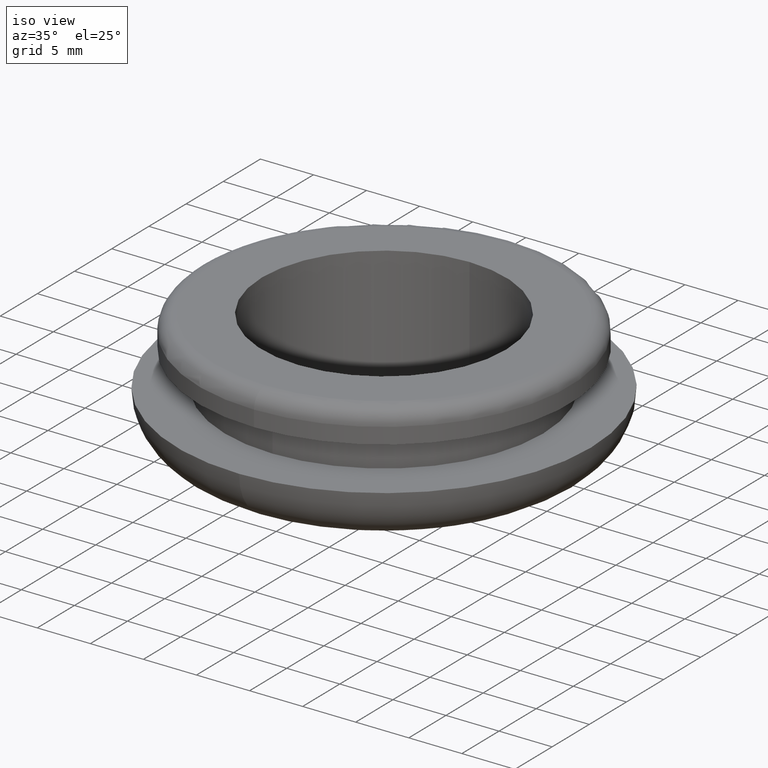
[diagram: clean part render]
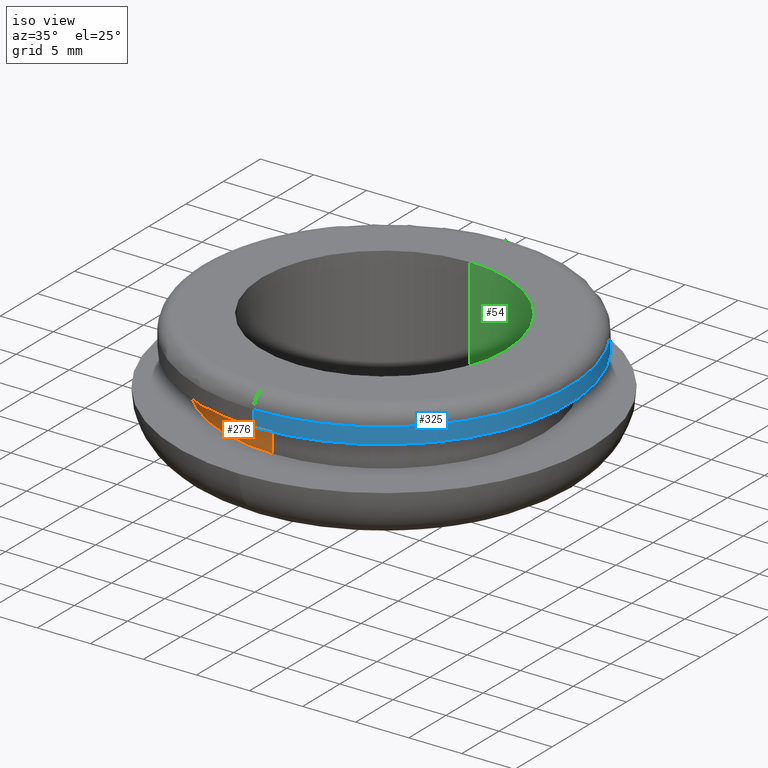
[diagram: same view with three faces highlighted in distinct colors, each labeled with its STEP entity id]
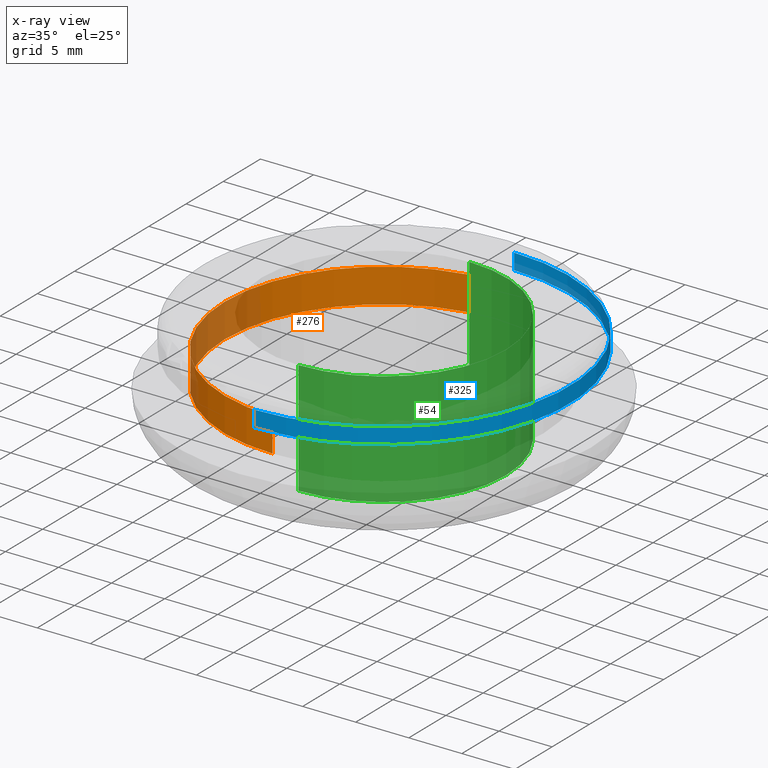
[diagram: x-ray of the same camera — body ghosted, the three highlighted faces saturated]
A machine part, iso view with three faces highlighted in distinct colors.
The next image is the same camera in x-ray (body ghosted, the three faces saturated) — at least one of them is partly hidden behind the body in this view.
Their STEP definitions:

[orange] entity #276 — the highlighted cylindrical surface (partial cylindrical patch) has radius 15 mm, axis along (0, -0, 1).
#45 = AXIS2_PLACEMENT_3D ( 'NONE', #164, #150, #148 ) ;
#56 = VERTEX_POINT ( 'NONE', #57 ) ;
#57 = CARTESIAN_POINT ( 'NONE',  ( 0.0000000000000000000, 2.999999999999999100, -15.00000000000000000 ) ) ;
#68 = VERTEX_POINT ( 'NONE', #461 ) ;
#130 = ORIENTED_EDGE ( 'NONE', *, *, #523, .T. ) ;
#148 = DIRECTION ( 'NONE',  ( 0.0000000000000000000, 0.0000000000000000000, -1.000000000000000000 ) ) ;
#150 = DIRECTION ( 'NONE',  ( 0.0000000000000000000, -1.000000000000000000, 0.0000000000000000000 ) ) ;
#151 = DIRECTION ( 'NONE',  ( 0.0000000000000000000, 0.0000000000000000000, -1.000000000000000000 ) ) ;
#159 = CARTESIAN_POINT ( 'NONE',  ( 1.836970198721029600E-015, 12.69999999999999900, 15.00000000000000000 ) ) ;
#164 = CARTESIAN_POINT ( 'NONE',  ( 0.0000000000000000000, 2.999999999999999100, 0.0000000000000000000 ) ) ;
#172 = VERTEX_POINT ( 'NONE', #354 ) ;
#176 = VECTOR ( 'NONE', #223, 1000.000000000000000 ) ;
#196 = LINE ( 'NONE', #159, #585 ) ;
#221 = EDGE_CURVE ( 'NONE', #172, #56, #312, .T. ) ;
#223 = DIRECTION ( 'NONE',  ( 0.0000000000000000000, -1.000000000000000000, 0.0000000000000000000 ) ) ;
#233 = CARTESIAN_POINT ( 'NONE',  ( 0.0000000000000000000, 12.69999999999999900, 0.0000000000000000000 ) ) ;
#276 = ADVANCED_FACE ( 'NONE', ( #416 ), #514, .T. ) ;
#310 = DIRECTION ( 'NONE',  ( 0.0000000000000000000, -1.000000000000000000, 0.0000000000000000000 ) ) ;
#312 = LINE ( 'NONE', #352, #176 ) ;
#333 = EDGE_CURVE ( 'NONE', #68, #56, #636, .T. ) ;
#345 = CARTESIAN_POINT ( 'NONE',  ( 1.836970198721029600E-015, 6.200000000000000200, 15.00000000000000000 ) ) ;
#352 = CARTESIAN_POINT ( 'NONE',  ( 0.0000000000000000000, 12.69999999999999900, -15.00000000000000000 ) ) ;
#354 = CARTESIAN_POINT ( 'NONE',  ( 0.0000000000000000000, 6.200000000000000200, -15.00000000000000000 ) ) ;
#363 = ORIENTED_EDGE ( 'NONE', *, *, #464, .F. ) ;
#396 = ORIENTED_EDGE ( 'NONE', *, *, #221, .T. ) ;
#397 = AXIS2_PLACEMENT_3D ( 'NONE', #644, #614, #151 ) ;
#416 = FACE_OUTER_BOUND ( 'NONE', #532, .T. ) ;
#436 = DIRECTION ( 'NONE',  ( 0.0000000000000000000, -1.000000000000000000, 0.0000000000000000000 ) ) ;
#447 = CIRCLE ( 'NONE', #397, 15.00000000000000000 ) ;
#450 = ORIENTED_EDGE ( 'NONE', *, *, #333, .F. ) ;
#461 = CARTESIAN_POINT ( 'NONE',  ( 1.836970198721029600E-015, 2.999999999999999100, 15.00000000000000000 ) ) ;
#464 = EDGE_CURVE ( 'NONE', #536, #68, #196, .T. ) ;
#514 = CYLINDRICAL_SURFACE ( 'NONE', #591, 15.00000000000000000 ) ;
#523 = EDGE_CURVE ( 'NONE', #536, #172, #447, .T. ) ;
#532 = EDGE_LOOP ( 'NONE', ( #363, #130, #396, #450 ) ) ;
#536 = VERTEX_POINT ( 'NONE', #345 ) ;
#565 = DIRECTION ( 'NONE',  ( 0.0000000000000000000, 0.0000000000000000000, -1.000000000000000000 ) ) ;
#585 = VECTOR ( 'NONE', #310, 1000.000000000000000 ) ;
#591 = AXIS2_PLACEMENT_3D ( 'NONE', #233, #436, #565 ) ;
#614 = DIRECTION ( 'NONE',  ( 0.0000000000000000000, -1.000000000000000000, 0.0000000000000000000 ) ) ;
#636 = CIRCLE ( 'NONE', #45, 15.00000000000000000 ) ;
#644 = CARTESIAN_POINT ( 'NONE',  ( 0.0000000000000000000, 6.200000000000000200, 0.0000000000000000000 ) ) ;

[blue] entity #325 — the highlighted cylindrical surface (partial cylindrical patch) has radius 17.5 mm, axis along (0, -0, 1).
#15 = VECTOR ( 'NONE', #414, 1000.000000000000000 ) ;
#36 = ORIENTED_EDGE ( 'NONE', *, *, #39, .T. ) ;
#39 = EDGE_CURVE ( 'NONE', #359, #298, #55, .T. ) ;
#44 = EDGE_CURVE ( 'NONE', #128, #199, #449, .T. ) ;
#55 = CIRCLE ( 'NONE', #144, 17.50000000000000000 ) ;
#70 = CARTESIAN_POINT ( 'NONE',  ( 0.0000000000000000000, 2.999999999999999100, -17.50000000000000000 ) ) ;
#93 = CARTESIAN_POINT ( 'NONE',  ( 0.0000000000000000000, 1.500000000000008200, 0.0000000000000000000 ) ) ;
#114 = CARTESIAN_POINT ( 'NONE',  ( 0.0000000000000000000, 12.69999999999999900, 0.0000000000000000000 ) ) ;
#115 = AXIS2_PLACEMENT_3D ( 'NONE', #114, #374, #200 ) ;
#128 = VERTEX_POINT ( 'NONE', #469 ) ;
#144 = AXIS2_PLACEMENT_3D ( 'NONE', #423, #575, #516 ) ;
#178 = AXIS2_PLACEMENT_3D ( 'NONE', #93, #466, #521 ) ;
#182 = EDGE_CURVE ( 'NONE', #298, #199, #378, .T. ) ;
#199 = VERTEX_POINT ( 'NONE', #609 ) ;
#200 = DIRECTION ( 'NONE',  ( 0.0000000000000000000, 0.0000000000000000000, -1.000000000000000000 ) ) ;
#239 = VECTOR ( 'NONE', #323, 1000.000000000000000 ) ;
#261 = EDGE_CURVE ( 'NONE', #359, #128, #297, .T. ) ;
#285 = ORIENTED_EDGE ( 'NONE', *, *, #261, .F. ) ;
#297 = LINE ( 'NONE', #376, #15 ) ;
#298 = VERTEX_POINT ( 'NONE', #340 ) ;
#323 = DIRECTION ( 'NONE',  ( 0.0000000000000000000, -1.000000000000000000, 0.0000000000000000000 ) ) ;
#325 = ADVANCED_FACE ( 'NONE', ( #405 ), #385, .T. ) ;
#340 = CARTESIAN_POINT ( 'NONE',  ( 2.143131898507868200E-015, 2.999999999999999100, 17.50000000000000000 ) ) ;
#359 = VERTEX_POINT ( 'NONE', #70 ) ;
#374 = DIRECTION ( 'NONE',  ( 0.0000000000000000000, -1.000000000000000000, 0.0000000000000000000 ) ) ;
#375 = CARTESIAN_POINT ( 'NONE',  ( 2.143131898507868200E-015, 12.69999999999999900, 17.50000000000000000 ) ) ;
#376 = CARTESIAN_POINT ( 'NONE',  ( 0.0000000000000000000, 12.69999999999999900, -17.50000000000000000 ) ) ;
#378 = LINE ( 'NONE', #375, #239 ) ;
#385 = CYLINDRICAL_SURFACE ( 'NONE', #115, 17.50000000000000000 ) ;
#405 = FACE_OUTER_BOUND ( 'NONE', #437, .T. ) ;
#414 = DIRECTION ( 'NONE',  ( 0.0000000000000000000, -1.000000000000000000, 0.0000000000000000000 ) ) ;
#423 = CARTESIAN_POINT ( 'NONE',  ( 0.0000000000000000000, 2.999999999999999100, 0.0000000000000000000 ) ) ;
#437 = EDGE_LOOP ( 'NONE', ( #36, #545, #579, #285 ) ) ;
#449 = CIRCLE ( 'NONE', #178, 17.50000000000000000 ) ;
#466 = DIRECTION ( 'NONE',  ( 0.0000000000000000000, -1.000000000000000000, 0.0000000000000000000 ) ) ;
#469 = CARTESIAN_POINT ( 'NONE',  ( 0.0000000000000000000, 1.500000000000008200, -17.50000000000000000 ) ) ;
#516 = DIRECTION ( 'NONE',  ( 0.0000000000000000000, 0.0000000000000000000, -1.000000000000000000 ) ) ;
#521 = DIRECTION ( 'NONE',  ( 0.0000000000000000000, 0.0000000000000000000, -1.000000000000000000 ) ) ;
#545 = ORIENTED_EDGE ( 'NONE', *, *, #182, .T. ) ;
#575 = DIRECTION ( 'NONE',  ( 0.0000000000000000000, -1.000000000000000000, 0.0000000000000000000 ) ) ;
#579 = ORIENTED_EDGE ( 'NONE', *, *, #44, .F. ) ;
#609 = CARTESIAN_POINT ( 'NONE',  ( 2.143131898507868200E-015, 1.500000000000008200, 17.50000000000000000 ) ) ;

[green] entity #54 — the highlighted cylindrical surface (partial cylindrical patch) has radius 11.5 mm, axis along (0, -0, 1).
#7 = EDGE_CURVE ( 'NONE', #127, #531, #227, .T. ) ;
#9 = EDGE_CURVE ( 'NONE', #500, #596, #121, .T. ) ;
#24 = CYLINDRICAL_SURFACE ( 'NONE', #316, 11.50000000000000000 ) ;
#46 = EDGE_CURVE ( 'NONE', #596, #531, #572, .T. ) ;
#54 = ADVANCED_FACE ( 'NONE', ( #185 ), #24, .F. ) ;
#82 = ORIENTED_EDGE ( 'NONE', *, *, #46, .T. ) ;
#83 = CARTESIAN_POINT ( 'NONE',  ( 0.0000000000000000000, 10.69999999999999900, -11.50000000000000000 ) ) ;
#104 = DIRECTION ( 'NONE',  ( 0.0000000000000000000, 0.0000000000000000000, -1.000000000000000000 ) ) ;
#108 = CARTESIAN_POINT ( 'NONE',  ( 1.408343819019456200E-015, 10.69999999999999900, 11.50000000000000000 ) ) ;
#121 = LINE ( 'NONE', #318, #472 ) ;
#127 = VERTEX_POINT ( 'NONE', #108 ) ;
#132 = CARTESIAN_POINT ( 'NONE',  ( 1.408343819019456200E-015, -1.734723475976807100E-015, 11.50000000000000000 ) ) ;
#149 = CARTESIAN_POINT ( 'NONE',  ( 0.0000000000000000000, 10.69999999999999900, 0.0000000000000000000 ) ) ;
#185 = FACE_OUTER_BOUND ( 'NONE', #607, .T. ) ;
#204 = DIRECTION ( 'NONE',  ( 0.0000000000000000000, -1.000000000000000000, 0.0000000000000000000 ) ) ;
#209 = AXIS2_PLACEMENT_3D ( 'NONE', #583, #236, #362 ) ;
#227 = LINE ( 'NONE', #251, #296 ) ;
#236 = DIRECTION ( 'NONE',  ( 0.0000000000000000000, -1.000000000000000000, 0.0000000000000000000 ) ) ;
#251 = CARTESIAN_POINT ( 'NONE',  ( 1.408343819019456200E-015, 12.69999999999999900, 11.50000000000000000 ) ) ;
#296 = VECTOR ( 'NONE', #468, 1000.000000000000000 ) ;
#303 = CIRCLE ( 'NONE', #538, 11.50000000000000000 ) ;
#316 = AXIS2_PLACEMENT_3D ( 'NONE', #373, #448, #584 ) ;
#318 = CARTESIAN_POINT ( 'NONE',  ( 0.0000000000000000000, 12.69999999999999900, -11.50000000000000000 ) ) ;
#362 = DIRECTION ( 'NONE',  ( 0.0000000000000000000, 0.0000000000000000000, -1.000000000000000000 ) ) ;
#373 = CARTESIAN_POINT ( 'NONE',  ( 0.0000000000000000000, 12.69999999999999900, 0.0000000000000000000 ) ) ;
#387 = ORIENTED_EDGE ( 'NONE', *, *, #633, .F. ) ;
#448 = DIRECTION ( 'NONE',  ( 0.0000000000000000000, -1.000000000000000000, 0.0000000000000000000 ) ) ;
#462 = ORIENTED_EDGE ( 'NONE', *, *, #7, .F. ) ;
#468 = DIRECTION ( 'NONE',  ( 0.0000000000000000000, -1.000000000000000000, 0.0000000000000000000 ) ) ;
#472 = VECTOR ( 'NONE', #533, 1000.000000000000000 ) ;
#500 = VERTEX_POINT ( 'NONE', #83 ) ;
#515 = ORIENTED_EDGE ( 'NONE', *, *, #9, .T. ) ;
#531 = VERTEX_POINT ( 'NONE', #132 ) ;
#533 = DIRECTION ( 'NONE',  ( 0.0000000000000000000, -1.000000000000000000, 0.0000000000000000000 ) ) ;
#538 = AXIS2_PLACEMENT_3D ( 'NONE', #149, #204, #104 ) ;
#572 = CIRCLE ( 'NONE', #209, 11.50000000000000000 ) ;
#583 = CARTESIAN_POINT ( 'NONE',  ( 0.0000000000000000000, -1.734723475976807100E-015, 0.0000000000000000000 ) ) ;
#584 = DIRECTION ( 'NONE',  ( 0.0000000000000000000, 0.0000000000000000000, -1.000000000000000000 ) ) ;
#596 = VERTEX_POINT ( 'NONE', #616 ) ;
#607 = EDGE_LOOP ( 'NONE', ( #462, #387, #515, #82 ) ) ;
#616 = CARTESIAN_POINT ( 'NONE',  ( 0.0000000000000000000, -1.734723475976807100E-015, -11.50000000000000000 ) ) ;
#633 = EDGE_CURVE ( 'NONE', #500, #127, #303, .T. ) ;